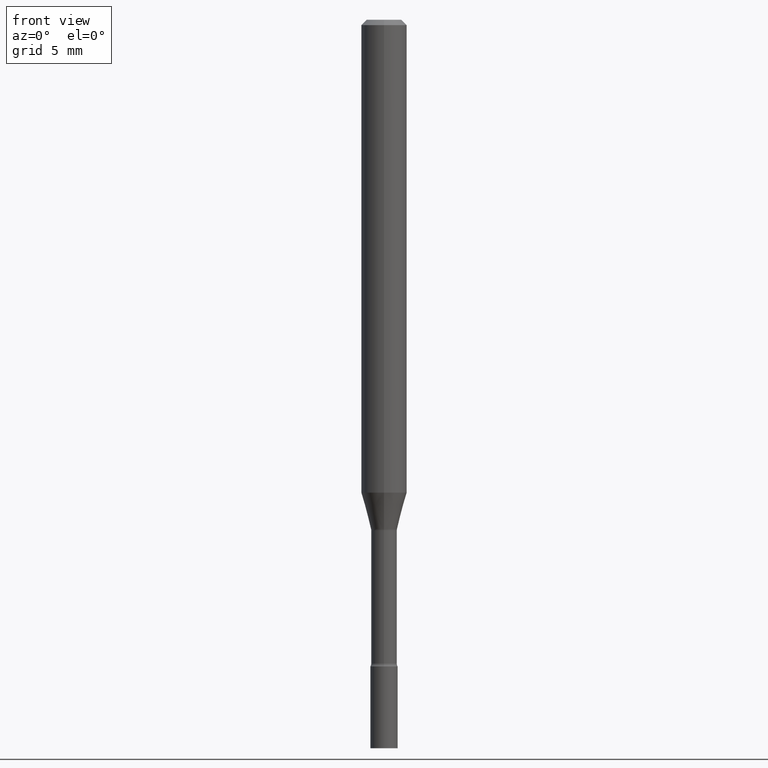
[diagram: clean part render]
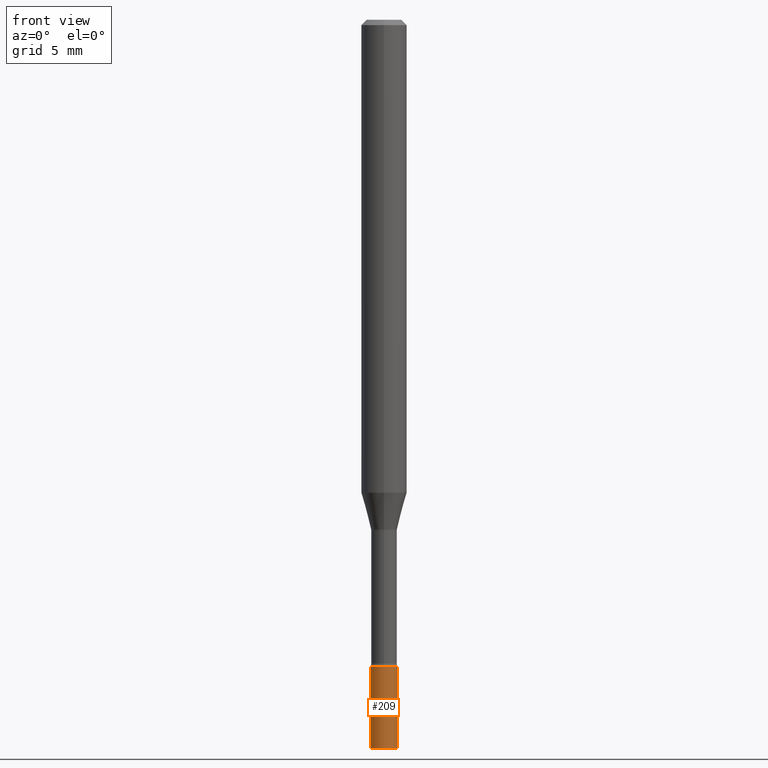
[diagram: same view with one face highlighted and labeled with its STEP entity id]
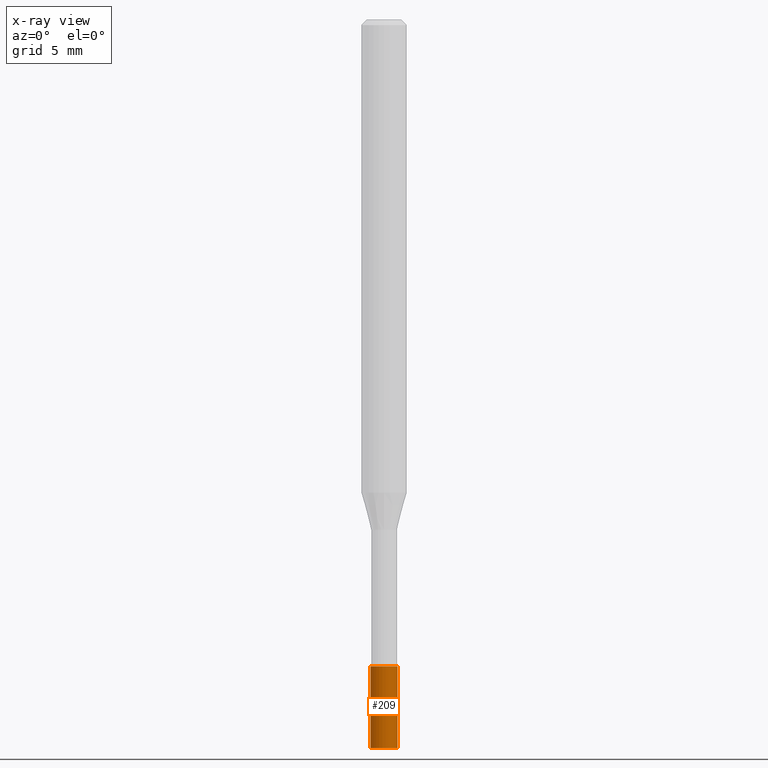
[diagram: x-ray of the same camera — body ghosted, the highlighted face saturated]
A machine part, front view. The second image highlights one B-rep face of the part: STEP entity #209.
The next image is the same camera in x-ray: the body ghosted, the highlighted face saturated — about 0% of this face is hidden behind the body in this view.
In plain terms, the highlighted cylindrical surface (edge-blend (fillet) strip) has radius 0.9525 mm, axis along (-0, 0, 1).
Its self-contained STEP definition (entity closure, byte-faithful):
#17 = ORIENTED_EDGE ( 'NONE', *, *, #236, .F. ) ;
#33 = VECTOR ( 'NONE', #402, 39.37007874015748143 ) ;
#36 = CARTESIAN_POINT ( 'NONE',  ( -0.03749999999999999861, 2.664535259100375598E-16, -1.844600658845589458E-30 ) ) ;
#40 = CIRCLE ( 'NONE', #391, 0.03749999999999999861 ) ;
#75 = FACE_OUTER_BOUND ( 'NONE', #493, .T. ) ;
#100 = EDGE_CURVE ( 'NONE', #501, #363, #353, .T. ) ;
#109 = CARTESIAN_POINT ( 'NONE',  ( -0.03749999999999999861, -6.323717501156401251E-15, -2.000000000000000000 ) ) ;
#114 = AXIS2_PLACEMENT_3D ( 'NONE', #237, #433, #306 ) ;
#127 = VERTEX_POINT ( 'NONE', #109 ) ;
#145 = CYLINDRICAL_SURFACE ( 'NONE', #114, 0.03749999999999999861 ) ;
#159 = ORIENTED_EDGE ( 'NONE', *, *, #161, .T. ) ;
#161 = EDGE_CURVE ( 'NONE', #470, #363, #334, .T. ) ;
#205 = CARTESIAN_POINT ( 'NONE',  ( 0.03749999999999999861, -6.459240476859818795E-15, -1.775000000000000133 ) ) ;
#209 = ADVANCED_FACE ( 'NONE', ( #75 ), #145, .T. ) ;
#235 = DIRECTION ( 'NONE',  ( -2.445468806185136877E-29, 3.491481338843145188E-15, 1.000000000000000000 ) ) ;
#236 = EDGE_CURVE ( 'NONE', #127, #501, #520, .T. ) ;
#237 = CARTESIAN_POINT ( 'NONE',  ( 0.000000000000000000, 0.000000000000000000, 0.000000000000000000 ) ) ;
#271 = CARTESIAN_POINT ( 'NONE',  ( 0.03749999999999999861, -7.244823778099525378E-15, -2.000000000000000000 ) ) ;
#283 = CARTESIAN_POINT ( 'NONE',  ( -0.03749999999999999861, -6.323717501156401251E-15, -1.775000000000000133 ) ) ;
#306 = DIRECTION ( 'NONE',  ( 1.000000000000000000, -6.982962677686266711E-15, 4.876176775795935793E-29 ) ) ;
#315 = CARTESIAN_POINT ( 'NONE',  ( 0.03749999999999999861, -2.618611004132350016E-16, 1.828566290923475922E-30 ) ) ;
#334 = LINE ( 'NONE', #315, #33 ) ;
#339 = DIRECTION ( 'NONE',  ( -2.445468806185136597E-29, 3.491481338843145583E-15, 1.000000000000000000 ) ) ;
#353 = CIRCLE ( 'NONE', #437, 0.03749999999999999861 ) ;
#363 = VERTEX_POINT ( 'NONE', #205 ) ;
#366 = CARTESIAN_POINT ( 'NONE',  ( 4.340707130978617347E-29, -6.197379376446583794E-15, -1.775000000000000133 ) ) ;
#370 = DIRECTION ( 'NONE',  ( -2.445468806185136597E-29, 3.491481338843145583E-15, 1.000000000000000000 ) ) ;
#389 = ORIENTED_EDGE ( 'NONE', *, *, #100, .F. ) ;
#391 = AXIS2_PLACEMENT_3D ( 'NONE', #393, #339, #506 ) ;
#393 = CARTESIAN_POINT ( 'NONE',  ( 4.890937612370273194E-29, -6.982962677686291165E-15, -2.000000000000000000 ) ) ;
#402 = DIRECTION ( 'NONE',  ( -2.445468806185136877E-29, 3.491481338843145188E-15, 1.000000000000000000 ) ) ;
#413 = DIRECTION ( 'NONE',  ( 1.000000000000000000, -6.982962677686268288E-15, 0.000000000000000000 ) ) ;
#433 = DIRECTION ( 'NONE',  ( -2.445468806185136597E-29, 3.491481338843145583E-15, 1.000000000000000000 ) ) ;
#435 = ORIENTED_EDGE ( 'NONE', *, *, #468, .T. ) ;
#437 = AXIS2_PLACEMENT_3D ( 'NONE', #366, #370, #413 ) ;
#468 = EDGE_CURVE ( 'NONE', #127, #470, #40, .T. ) ;
#470 = VERTEX_POINT ( 'NONE', #271 ) ;
#493 = EDGE_LOOP ( 'NONE', ( #17, #435, #159, #389 ) ) ;
#501 = VERTEX_POINT ( 'NONE', #283 ) ;
#506 = DIRECTION ( 'NONE',  ( 1.000000000000000000, -6.982962677686268288E-15, 0.000000000000000000 ) ) ;
#509 = VECTOR ( 'NONE', #235, 39.37007874015748143 ) ;
#520 = LINE ( 'NONE', #36, #509 ) ;